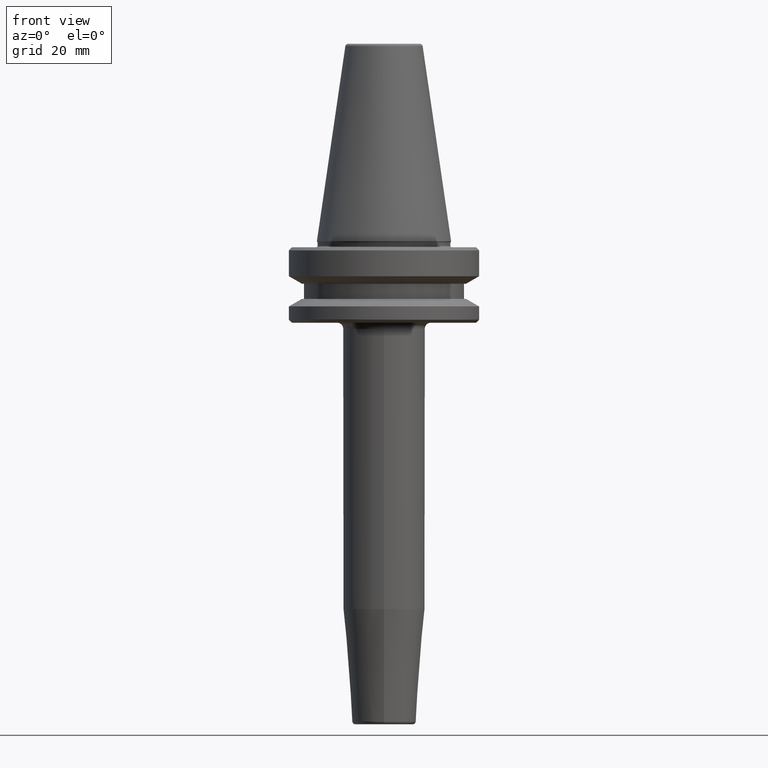
[diagram: clean part render]
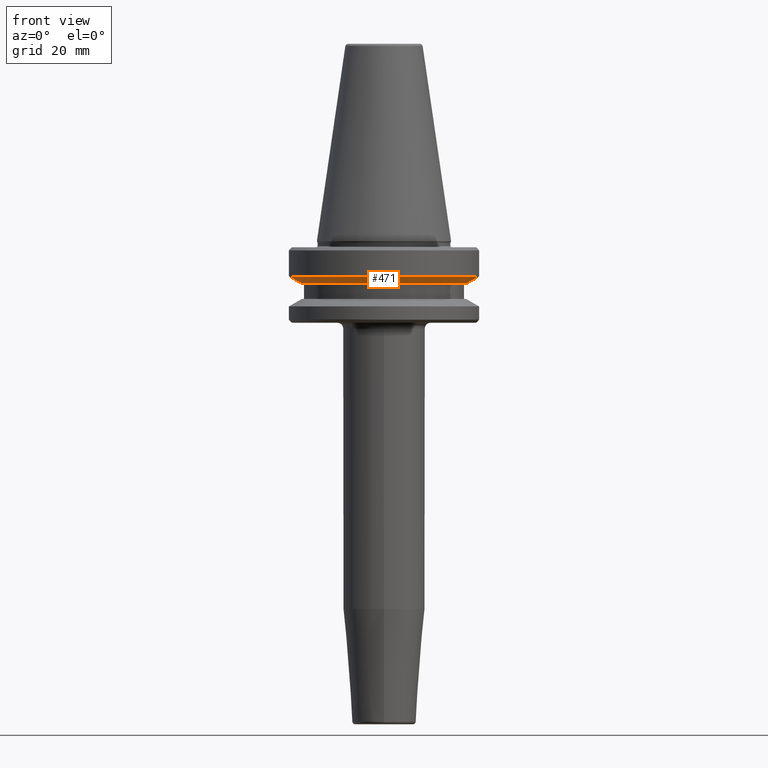
[diagram: same view with one face highlighted and labeled with its STEP entity id]
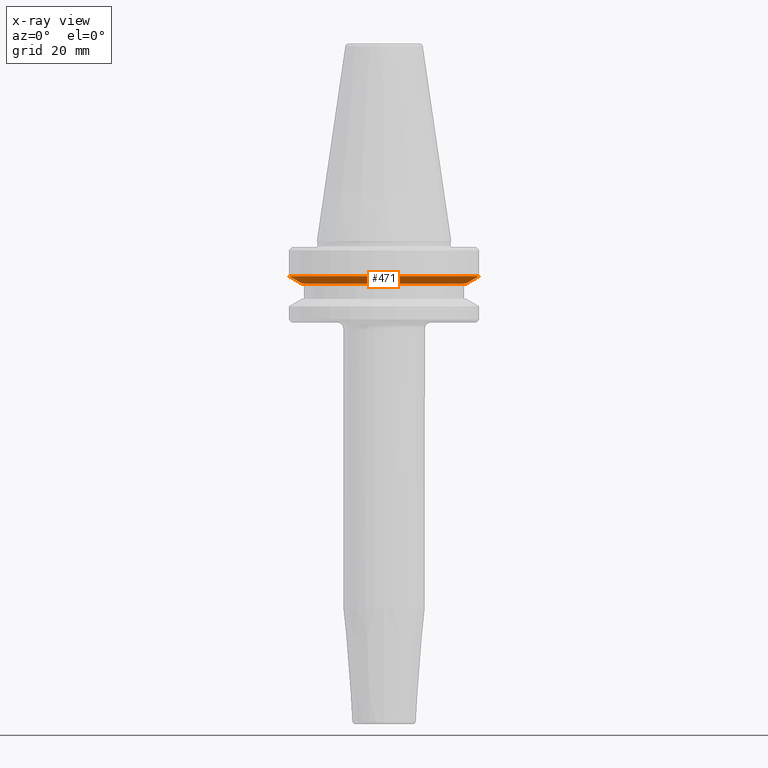
[diagram: x-ray of the same camera — body ghosted, the highlighted face saturated]
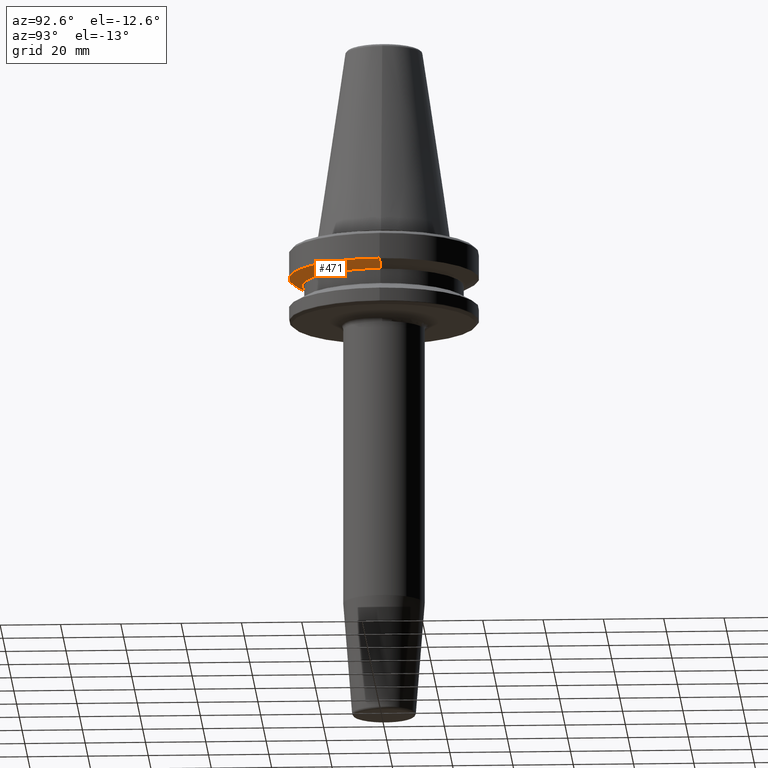
[diagram: same view with one face highlighted and labeled with its STEP entity id]
A machine part, front view. The second image highlights one B-rep face of the part: STEP entity #471.
The next image is the same camera in x-ray: the body ghosted, the highlighted face saturated — about 0% of this face is hidden behind the body in this view.
A second angle (auxiliary view) of the same face is appended — the face is thin or edge-on in the first view.
In plain terms, the highlighted conical surface has half-angle 60 deg.
Its self-contained STEP definition (entity closure, byte-faithful):
#31 = CARTESIAN_POINT ( 'NONE',  ( 31.50000000000000000, 0.0000000000000000000, -11.59985799368323700 ) ) ;
#80 = DIRECTION ( 'NONE',  ( -0.0000000000000000000, -0.0000000000000000000, 1.000000000000000000 ) ) ;
#175 = EDGE_CURVE ( 'NONE', #1184, #1096, #1100, .T. ) ;
#180 = CARTESIAN_POINT ( 'NONE',  ( 0.0000000000000000000, 0.0000000000000000000, -11.59985799368323700 ) ) ;
#305 = ORIENTED_EDGE ( 'NONE', *, *, #175, .F. ) ;
#380 = CARTESIAN_POINT ( 'NONE',  ( -31.50000000000000000, 3.857637417314162700E-015, -11.59985799368323700 ) ) ;
#411 = CARTESIAN_POINT ( 'NONE',  ( 0.0000000000000000000, 0.0000000000000000000, -14.10000000000000100 ) ) ;
#442 = ORIENTED_EDGE ( 'NONE', *, *, #591, .F. ) ;
#445 = ORIENTED_EDGE ( 'NONE', *, *, #961, .T. ) ;
#460 = VERTEX_POINT ( 'NONE', #491 ) ;
#471 = ADVANCED_FACE ( 'NONE', ( #477 ), #663, .T. ) ;
#477 = FACE_OUTER_BOUND ( 'NONE', #481, .T. ) ;
#481 = EDGE_LOOP ( 'NONE', ( #442, #956, #445, #305 ) ) ;
#491 = CARTESIAN_POINT ( 'NONE',  ( -27.16962701892216000, 3.592478546794604700E-015, -14.10000000000000100 ) ) ;
#494 = CARTESIAN_POINT ( 'NONE',  ( 31.50000000000000000, 0.0000000000000000000, -11.59985799368323700 ) ) ;
#517 = CIRCLE ( 'NONE', #1241, 27.16962701892216000 ) ;
#536 = AXIS2_PLACEMENT_3D ( 'NONE', #180, #80, #1132 ) ;
#553 = DIRECTION ( 'NONE',  ( 1.000000000000000000, 0.0000000000000000000, 0.0000000000000000000 ) ) ;
#562 = DIRECTION ( 'NONE',  ( -0.0000000000000000000, -0.0000000000000000000, 1.000000000000000000 ) ) ;
#591 = EDGE_CURVE ( 'NONE', #460, #1184, #653, .T. ) ;
#636 = CARTESIAN_POINT ( 'NONE',  ( 0.0000000000000000000, 0.0000000000000000000, -11.59985799368323700 ) ) ;
#653 = LINE ( 'NONE', #380, #1189 ) ;
#663 = CONICAL_SURFACE ( 'NONE', #536, 31.50000000000000000, 1.047197551196599400 ) ;
#719 = DIRECTION ( 'NONE',  ( 0.8660254037844393700, 0.0000000000000000000, 0.4999999999999985000 ) ) ;
#796 = EDGE_CURVE ( 'NONE', #460, #1253, #517, .T. ) ;
#806 = CARTESIAN_POINT ( 'NONE',  ( 27.16962701892216000, 0.0000000000000000000, -14.10000000000000100 ) ) ;
#864 = DIRECTION ( 'NONE',  ( -0.0000000000000000000, -0.0000000000000000000, 1.000000000000000000 ) ) ;
#896 = VECTOR ( 'NONE', #719, 1000.000000000000100 ) ;
#956 = ORIENTED_EDGE ( 'NONE', *, *, #796, .T. ) ;
#961 = EDGE_CURVE ( 'NONE', #1253, #1096, #1157, .T. ) ;
#987 = CARTESIAN_POINT ( 'NONE',  ( -31.50000000000000000, 3.857637417314162700E-015, -11.59985799368323700 ) ) ;
#1089 = DIRECTION ( 'NONE',  ( -0.8660254037844393700, 1.060575238724907800E-016, 0.4999999999999985000 ) ) ;
#1096 = VERTEX_POINT ( 'NONE', #494 ) ;
#1100 = CIRCLE ( 'NONE', #1247, 31.50000000000000000 ) ;
#1122 = DIRECTION ( 'NONE',  ( 1.000000000000000000, 0.0000000000000000000, 0.0000000000000000000 ) ) ;
#1132 = DIRECTION ( 'NONE',  ( 1.000000000000000000, 0.0000000000000000000, 0.0000000000000000000 ) ) ;
#1157 = LINE ( 'NONE', #31, #896 ) ;
#1184 = VERTEX_POINT ( 'NONE', #987 ) ;
#1189 = VECTOR ( 'NONE', #1089, 1000.000000000000100 ) ;
#1241 = AXIS2_PLACEMENT_3D ( 'NONE', #411, #864, #1122 ) ;
#1247 = AXIS2_PLACEMENT_3D ( 'NONE', #636, #562, #553 ) ;
#1253 = VERTEX_POINT ( 'NONE', #806 ) ;